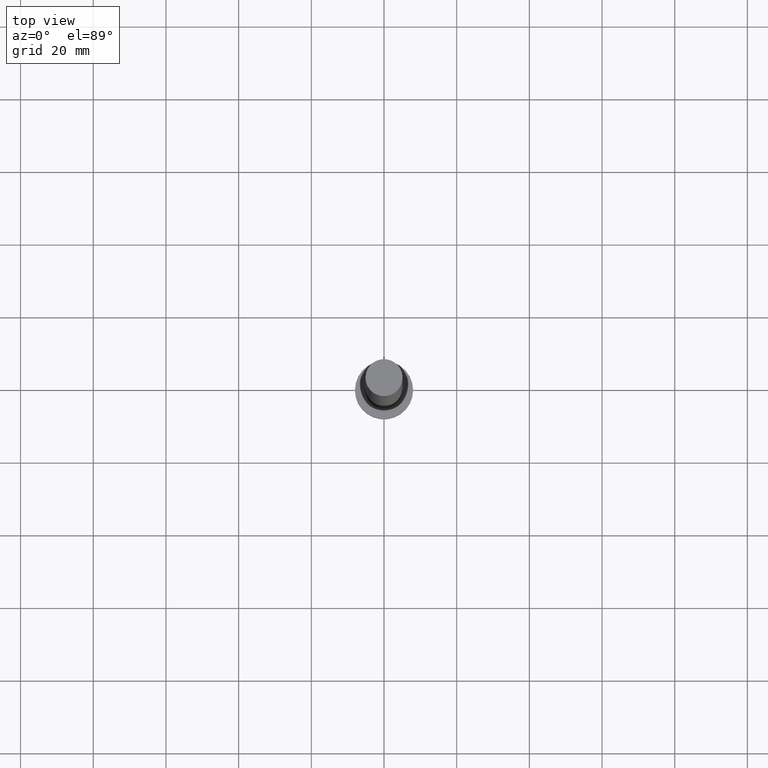
[diagram: clean part render]
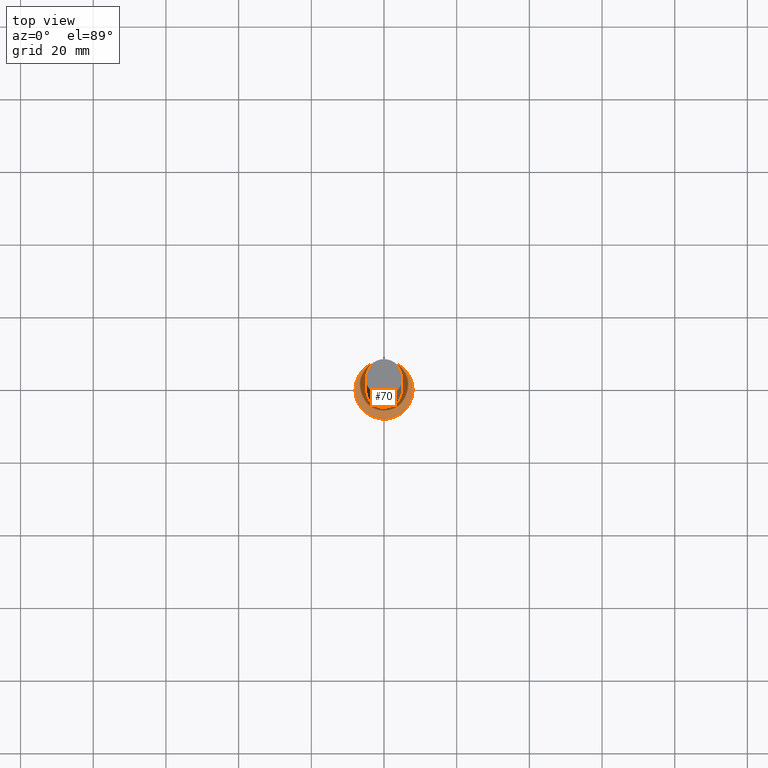
[diagram: same view with one face highlighted and labeled with its STEP entity id]
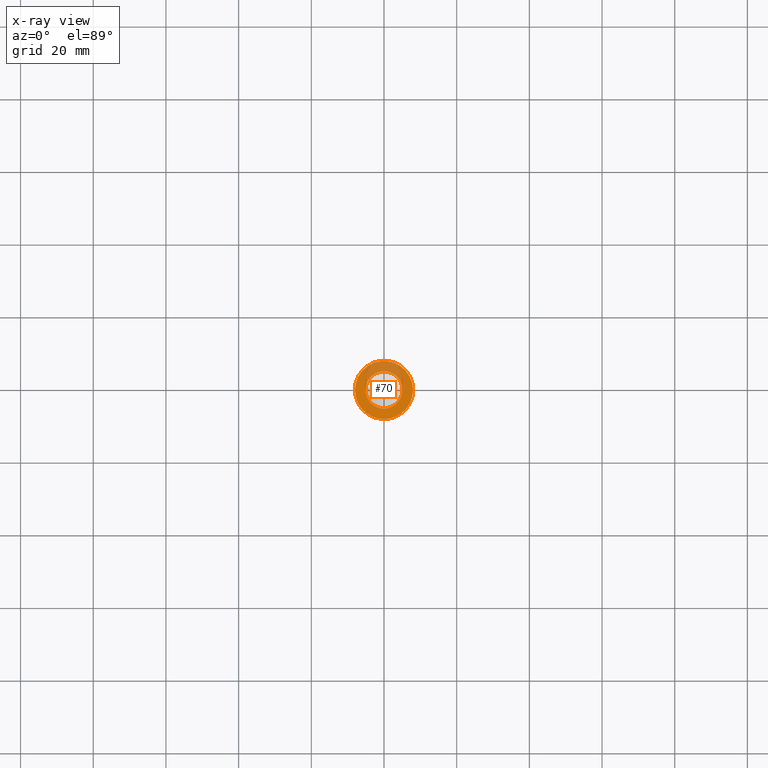
[diagram: x-ray of the same camera — body ghosted, the highlighted face saturated]
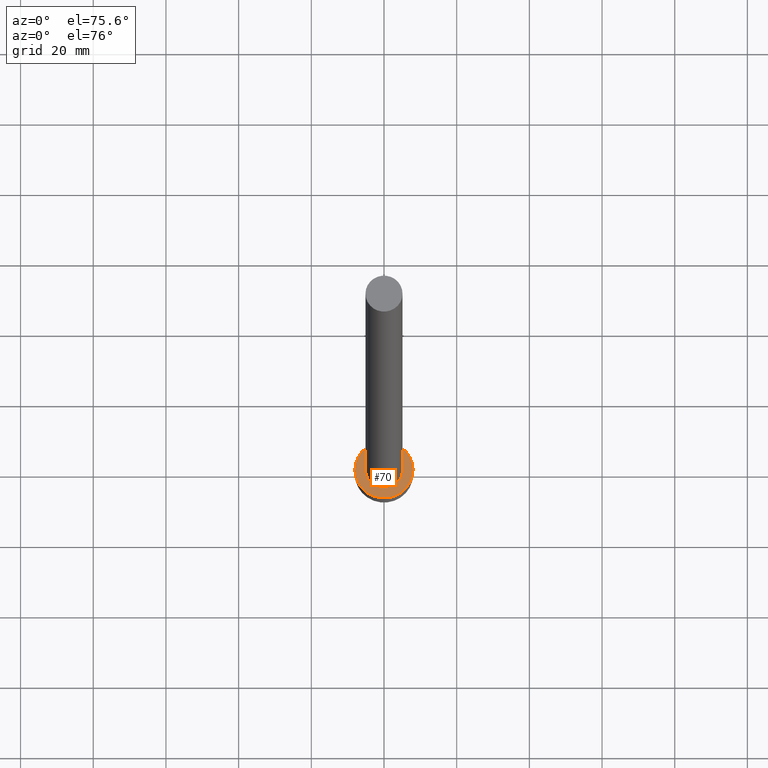
[diagram: same view with one face highlighted and labeled with its STEP entity id]
A machine part, top view. The second image highlights one B-rep face of the part: STEP entity #70.
The next image is the same camera in x-ray: the body ghosted, the highlighted face saturated — about 27% of this face is hidden behind the body in this view.
A second angle (auxiliary view) of the same face is appended — the face is thin or edge-on in the first view.
In plain terms, the highlighted planar face has unit normal (0, 0, 1).
Its self-contained STEP definition (entity closure, byte-faithful):
#1 = CARTESIAN_POINT ( 'NONE',  ( 5.100000000000001421, 6.245698675651502811E-16, 5.000000000000000000 ) ) ;
#10 = DIRECTION ( 'NONE',  ( 0.000000000000000000, 0.000000000000000000, 1.000000000000000000 ) ) ;
#11 = ORIENTED_EDGE ( 'NONE', *, *, #208, .T. ) ;
#12 = DIRECTION ( 'NONE',  ( 0.000000000000000000, 0.000000000000000000, 1.000000000000000000 ) ) ;
#15 = AXIS2_PLACEMENT_3D ( 'NONE', #102, #10, #118 ) ;
#29 = DIRECTION ( 'NONE',  ( 1.000000000000000000, 0.000000000000000000, 0.000000000000000000 ) ) ;
#46 = AXIS2_PLACEMENT_3D ( 'NONE', #194, #156, #55 ) ;
#50 = VERTEX_POINT ( 'NONE', #1 ) ;
#54 = FACE_BOUND ( 'NONE', #163, .T. ) ;
#55 = DIRECTION ( 'NONE',  ( 1.000000000000000000, 0.000000000000000000, -0.000000000000000000 ) ) ;
#58 = CARTESIAN_POINT ( 'NONE',  ( -5.100000000000001421, 0.000000000000000000, 5.000000000000000000 ) ) ;
#61 = CIRCLE ( 'NONE', #91, 5.100000000000001421 ) ;
#65 = CARTESIAN_POINT ( 'NONE',  ( 8.000000000000000000, 9.797174393178825657E-16, 5.000000000000000000 ) ) ;
#70 = ADVANCED_FACE ( 'NONE', ( #54, #236 ), #75, .T. ) ;
#72 = DIRECTION ( 'NONE',  ( 0.000000000000000000, 0.000000000000000000, 1.000000000000000000 ) ) ;
#75 = PLANE ( 'NONE',  #46 ) ;
#76 = AXIS2_PLACEMENT_3D ( 'NONE', #200, #72, #124 ) ;
#83 = CARTESIAN_POINT ( 'NONE',  ( 0.000000000000000000, 0.000000000000000000, 5.000000000000000000 ) ) ;
#84 = DIRECTION ( 'NONE',  ( 1.000000000000000000, 0.000000000000000000, 0.000000000000000000 ) ) ;
#91 = AXIS2_PLACEMENT_3D ( 'NONE', #83, #12, #84 ) ;
#100 = CIRCLE ( 'NONE', #15, 8.000000000000000000 ) ;
#102 = CARTESIAN_POINT ( 'NONE',  ( 0.000000000000000000, 0.000000000000000000, 5.000000000000000000 ) ) ;
#118 = DIRECTION ( 'NONE',  ( 1.000000000000000000, 0.000000000000000000, 0.000000000000000000 ) ) ;
#124 = DIRECTION ( 'NONE',  ( 1.000000000000000000, 0.000000000000000000, 0.000000000000000000 ) ) ;
#131 = VERTEX_POINT ( 'NONE', #58 ) ;
#140 = VERTEX_POINT ( 'NONE', #159 ) ;
#156 = DIRECTION ( 'NONE',  ( 0.000000000000000000, 0.000000000000000000, 1.000000000000000000 ) ) ;
#159 = CARTESIAN_POINT ( 'NONE',  ( -8.000000000000000000, 0.000000000000000000, 5.000000000000000000 ) ) ;
#161 = ORIENTED_EDGE ( 'NONE', *, *, #239, .T. ) ;
#163 = EDGE_LOOP ( 'NONE', ( #193, #166 ) ) ;
#165 = CARTESIAN_POINT ( 'NONE',  ( 0.000000000000000000, 0.000000000000000000, 5.000000000000000000 ) ) ;
#166 = ORIENTED_EDGE ( 'NONE', *, *, #169, .F. ) ;
#169 = EDGE_CURVE ( 'NONE', #50, #131, #61, .T. ) ;
#176 = CIRCLE ( 'NONE', #76, 8.000000000000000000 ) ;
#180 = CIRCLE ( 'NONE', #229, 5.100000000000001421 ) ;
#190 = EDGE_CURVE ( 'NONE', #131, #50, #180, .T. ) ;
#193 = ORIENTED_EDGE ( 'NONE', *, *, #190, .F. ) ;
#194 = CARTESIAN_POINT ( 'NONE',  ( 0.000000000000000000, 0.000000000000000000, 5.000000000000000000 ) ) ;
#200 = CARTESIAN_POINT ( 'NONE',  ( 0.000000000000000000, 0.000000000000000000, 5.000000000000000000 ) ) ;
#202 = DIRECTION ( 'NONE',  ( 0.000000000000000000, 0.000000000000000000, 1.000000000000000000 ) ) ;
#208 = EDGE_CURVE ( 'NONE', #209, #140, #100, .T. ) ;
#209 = VERTEX_POINT ( 'NONE', #65 ) ;
#224 = EDGE_LOOP ( 'NONE', ( #161, #11 ) ) ;
#229 = AXIS2_PLACEMENT_3D ( 'NONE', #165, #202, #29 ) ;
#236 = FACE_OUTER_BOUND ( 'NONE', #224, .T. ) ;
#239 = EDGE_CURVE ( 'NONE', #140, #209, #176, .T. ) ;